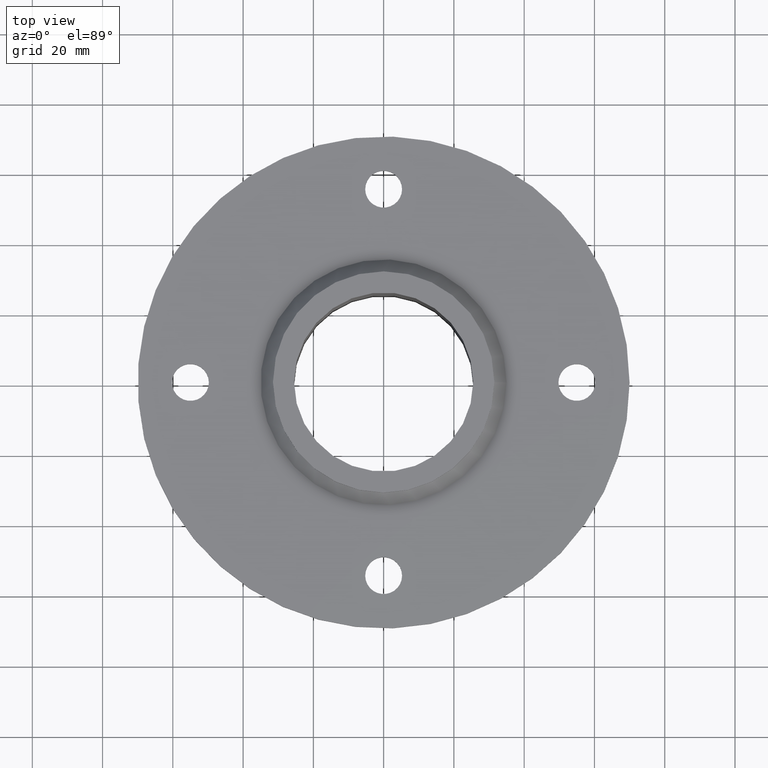
[diagram: clean part render]
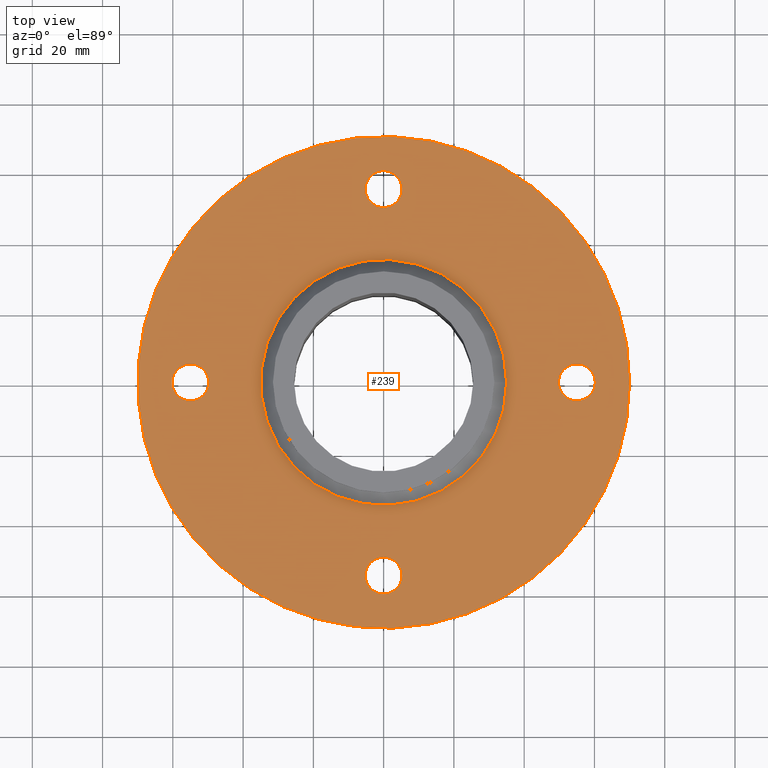
[diagram: same view with one face highlighted and labeled with its STEP entity id]
A machine part, top view. The second image highlights one B-rep face of the part: STEP entity #239.
In plain terms, the highlighted planar face has unit normal (0, 0, 1).
Its self-contained STEP definition (entity closure, byte-faithful):
#84=CARTESIAN_POINT('',(5.249999999999994,-55.0,-6.000000000000002));
#85=VERTEX_POINT('',#84);
#86=CARTESIAN_POINT('',(-6.735557E-015,-55.0,-6.000000000000014));
#87=DIRECTION('',(0.0,0.0,-1.0));
#88=DIRECTION('',(1.0,0.0,0.0));
#89=AXIS2_PLACEMENT_3D('',#86,#87,#88);
#90=CIRCLE('',#89,5.25);
#91=EDGE_CURVE('',#85,#85,#90,.T.);
#112=CARTESIAN_POINT('',(5.25,55.0,-6.000000000000002));
#113=VERTEX_POINT('',#112);
#114=CARTESIAN_POINT('',(0.0,55.0,-6.000000000000014));
#115=DIRECTION('',(0.0,0.0,-1.0));
#116=DIRECTION('',(1.0,0.0,0.0));
#117=AXIS2_PLACEMENT_3D('',#114,#115,#116);
#118=CIRCLE('',#117,5.25);
#119=EDGE_CURVE('',#113,#113,#118,.T.);
#140=CARTESIAN_POINT('',(60.25,-1.010334E-014,-6.000000000000002));
#141=VERTEX_POINT('',#140);
#142=CARTESIAN_POINT('',(55.0,-1.010334E-014,-6.000000000000014));
#143=DIRECTION('',(0.0,0.0,-1.0));
#144=DIRECTION('',(1.0,0.0,0.0));
#145=AXIS2_PLACEMENT_3D('',#142,#143,#144);
#146=CIRCLE('',#145,5.25);
#147=EDGE_CURVE('',#141,#141,#146,.T.);
#168=CARTESIAN_POINT('',(-49.75,3.367779E-015,-6.000000000000002));
#169=VERTEX_POINT('',#168);
#170=CARTESIAN_POINT('',(-55.0,3.367779E-015,-6.000000000000014));
#171=DIRECTION('',(0.0,0.0,-1.0));
#172=DIRECTION('',(1.0,0.0,0.0));
#173=AXIS2_PLACEMENT_3D('',#170,#171,#172);
#174=CIRCLE('',#173,5.25);
#175=EDGE_CURVE('',#169,#169,#174,.T.);
#185=CARTESIAN_POINT('',(35.000000000000014,4.286264E-015,-6.000000000000002));
#186=VERTEX_POINT('',#185);
#187=CARTESIAN_POINT('',(0.0,0.0,-6.000000000000002));
#188=DIRECTION('',(0.0,0.0,1.0));
#189=DIRECTION('',(-1.0,0.0,0.0));
#190=AXIS2_PLACEMENT_3D('',#187,#188,#189);
#191=CIRCLE('',#190,35.000000000000014);
#192=EDGE_CURVE('',#186,#186,#191,.T.);
#208=CARTESIAN_POINT('',(-4.097914E-015,-1.691768E-015,-6.000000000000002));
#209=DIRECTION('',(0.0,0.0,1.0));
#210=DIRECTION('',(1.0,0.0,0.0));
#211=AXIS2_PLACEMENT_3D('',#208,#209,#210);
#212=PLANE('',#211);
#213=CARTESIAN_POINT('',(70.0,8.572528E-015,-6.000000000000002));
#214=VERTEX_POINT('',#213);
#215=CARTESIAN_POINT('',(0.0,0.0,-6.000000000000002));
#216=DIRECTION('',(0.0,0.0,1.0));
#217=DIRECTION('',(-1.0,0.0,0.0));
#218=AXIS2_PLACEMENT_3D('',#215,#216,#217);
#219=CIRCLE('',#218,70.0);
#220=EDGE_CURVE('',#214,#214,#219,.T.);
#221=ORIENTED_EDGE('',*,*,#220,.T.);
#222=EDGE_LOOP('',(#221));
#223=FACE_OUTER_BOUND('',#222,.T.);
#224=ORIENTED_EDGE('',*,*,#91,.T.);
#225=EDGE_LOOP('',(#224));
#226=FACE_BOUND('',#225,.T.);
#227=ORIENTED_EDGE('',*,*,#119,.T.);
#228=EDGE_LOOP('',(#227));
#229=FACE_BOUND('',#228,.T.);
#230=ORIENTED_EDGE('',*,*,#147,.T.);
#231=EDGE_LOOP('',(#230));
#232=FACE_BOUND('',#231,.T.);
#233=ORIENTED_EDGE('',*,*,#175,.T.);
#234=EDGE_LOOP('',(#233));
#235=FACE_BOUND('',#234,.T.);
#236=ORIENTED_EDGE('',*,*,#192,.F.);
#237=EDGE_LOOP('',(#236));
#238=FACE_BOUND('',#237,.T.);
#239=ADVANCED_FACE('',(#223,#226,#229,#232,#235,#238),#212,.T.);